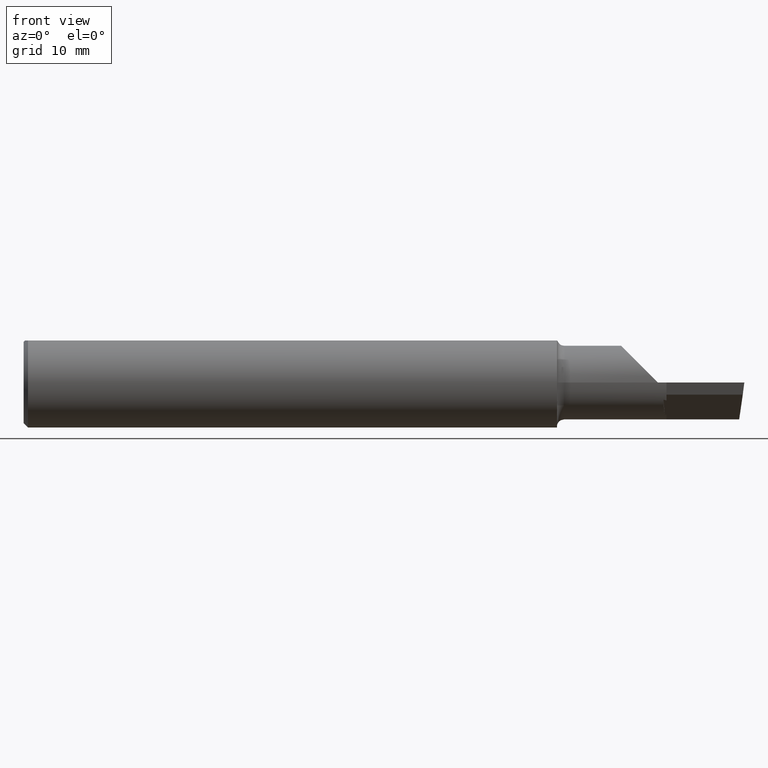
[diagram: clean part render]
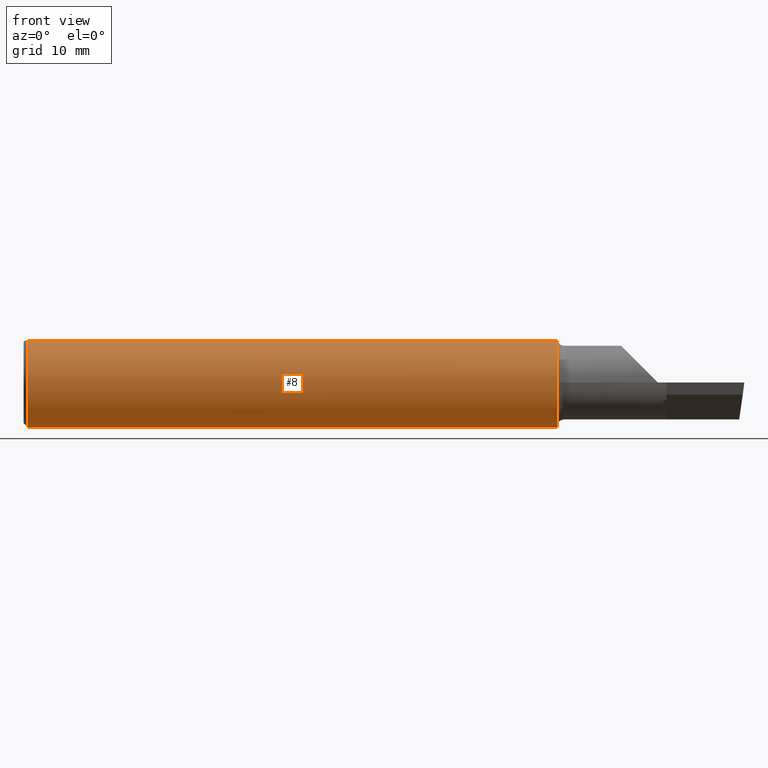
[diagram: same view with one face highlighted and labeled with its STEP entity id]
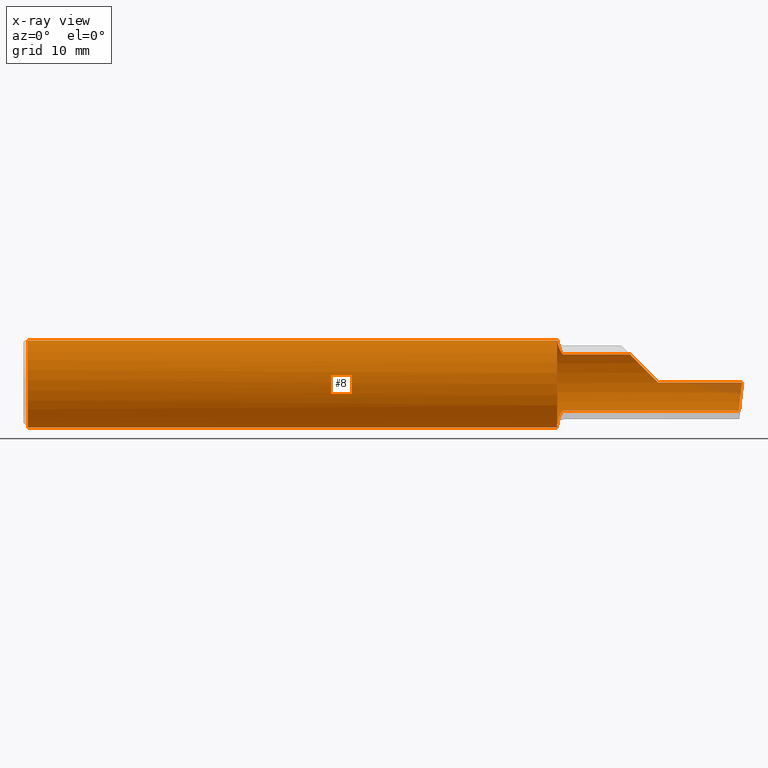
[diagram: x-ray of the same camera — body ghosted, the highlighted face saturated]
A machine part, front view. The second image highlights one B-rep face of the part: STEP entity #8.
The next image is the same camera in x-ray: the body ghosted, the highlighted face saturated — about 1% of this face is hidden behind the body in this view.
In plain terms, the highlighted cylindrical surface (partial cylindrical patch) has radius 3.9649 mm, axis along (-1, -0, -0).
Its self-contained STEP definition (entity closure, byte-faithful):
#3 =( BOUNDED_CURVE ( )  B_SPLINE_CURVE ( 3, ( #381, #215, #436, #553 ),
 .UNSPECIFIED., .F., .F. ) 
 B_SPLINE_CURVE_WITH_KNOTS ( ( 4, 4 ),
 ( 4.934903206476692006, 5.606733633295030828 ),
 .UNSPECIFIED. ) 
 CURVE ( )  GEOMETRIC_REPRESENTATION_ITEM ( )  RATIONAL_B_SPLINE_CURVE ( ( 1.000000000000000000, 0.9627393467969929119, 0.9627393467969929119, 1.000000000000000000 ) ) 
 REPRESENTATION_ITEM ( '' )  );
#5 = AXIS2_PLACEMENT_3D ( 'NONE', #282, #386, #232 ) ;
#8 = ADVANCED_FACE ( 'NONE', ( #389 ), #663, .T. ) ;
#11 = ORIENTED_EDGE ( 'NONE', *, *, #677, .T. ) ;
#18 = ORIENTED_EDGE ( 'NONE', *, *, #31, .T. ) ;
#22 = CARTESIAN_POINT ( 'NONE',  ( 0.01499999999999999424, 0.05497272050753903433, 0.1460999999999999521 ) ) ;
#25 = EDGE_CURVE ( 'NONE', #449, #508, #447, .T. ) ;
#30 = CARTESIAN_POINT ( 'NONE',  ( 1.850339637342208743, 0.05067448177557441757, -0.1479473295851734538 ) ) ;
#31 = EDGE_CURVE ( 'NONE', #600, #618, #154, .T. ) ;
#36 = DIRECTION ( 'NONE',  ( 0.000000000000000000, 0.000000000000000000, 1.000000000000000000 ) ) ;
#38 = CARTESIAN_POINT ( 'NONE',  ( 2.200000000000000178, 0.1560999999999997667, 9.797174393178826150E-17 ) ) ;
#64 = CARTESIAN_POINT ( 'NONE',  ( 1.871394201221187714, 0.1214391589398817889, 0.09808983170724469569 ) ) ;
#68 = CARTESIAN_POINT ( 'NONE',  ( 2.200000000000000178, 0.1560999999999997667, 9.797174393178826150E-17 ) ) ;
#74 = VERTEX_POINT ( 'NONE', #22 ) ;
#76 = CARTESIAN_POINT ( 'NONE',  ( 1.850000000000000311, 0.03217692307692287396, -0.1527476861405820951 ) ) ;
#77 = ORIENTED_EDGE ( 'NONE', *, *, #191, .T. ) ;
#80 = CARTESIAN_POINT ( 'NONE',  ( 1.857643545987175182, 0.09968740490940185273, -0.1204690658458922592 ) ) ;
#81 = LINE ( 'NONE', #299, #274 ) ;
#84 = CARTESIAN_POINT ( 'NONE',  ( 0.000000000000000000, 0.05497272050753903433, 0.1460999999999999521 ) ) ;
#100 = VERTEX_POINT ( 'NONE', #554 ) ;
#101 = LINE ( 'NONE', #418, #305 ) ;
#104 = EDGE_CURVE ( 'NONE', #489, #449, #407, .T. ) ;
#107 = CARTESIAN_POINT ( 'NONE',  ( 3.121792066109142165E-32, 0.1560999999999999333, 3.155924005931204823E-16 ) ) ;
#110 = EDGE_CURVE ( 'NONE', #644, #376, #81, .T. ) ;
#118 = CARTESIAN_POINT ( 'NONE',  ( 1.859698108077551426, 0.1054404049151040079, 0.1153284228895402330 ) ) ;
#120 = LINE ( 'NONE', #453, #227 ) ;
#122 = CARTESIAN_POINT ( 'NONE',  ( 2.164368501139629419, 0.1560999999999999888, 0.03563149886037008524 ) ) ;
#126 = CARTESIAN_POINT ( 'NONE',  ( 1.861718925422503945, 0.1096997042182705773, -0.1111484413982588015 ) ) ;
#130 = CARTESIAN_POINT ( 'NONE',  ( 2.481689713451043833, 0.1221769230769230025, -0.09715971113303926987 ) ) ;
#132 = B_SPLINE_CURVE_WITH_KNOTS ( 'NONE', 3,
 ( #581, #411, #511, #624, #246, #139, #135, #345, #126, #80, #468, #567, #521, #30, #239, #76 ),
 .UNSPECIFIED., .F., .F.,
 ( 4, 2, 2, 2, 2, 2, 2, 4 ),
 ( 1.968192473106879856E-07, 9.217006773806666828E-05, 0.0001841433162288226436, 0.0003680898132103224240, 0.0007359828071733212802, 0.001471768795099325606, 0.002207554783025329932, 0.002943340770951334041 ),
 .UNSPECIFIED. ) ;
#134 = CARTESIAN_POINT ( 'NONE',  ( 1.850713348720346207, 0.05497272050753925637, 0.1460999999999999521 ) ) ;
#135 = CARTESIAN_POINT ( 'NONE',  ( 1.866392177358948024, 0.1172252637552309573, -0.1031022108064128945 ) ) ;
#137 = DIRECTION ( 'NONE',  ( 0.000000000000000000, 0.000000000000000000, 1.000000000000000000 ) ) ;
#139 = CARTESIAN_POINT ( 'NONE',  ( 1.867557852537987007, 0.1186103045499230513, -0.1015006042428822641 ) ) ;
#143 = EDGE_CURVE ( 'NONE', #376, #174, #132, .T. ) ;
#154 = B_SPLINE_CURVE_WITH_KNOTS ( 'NONE', 3,
 ( #170, #223, #608, #327, #118, #277, #557, #666, #173, #64, #226, #671 ),
 .UNSPECIFIED., .F., .F.,
 ( 4, 2, 2, 2, 2, 4 ),
 ( 5.609278044437242005E-07, 0.001139286486424871073, 0.001708649265735085430, 0.001993330655390192392, 0.002135671350217746307, 0.002278012045045300655 ),
 .UNSPECIFIED. ) ;
#167 = EDGE_CURVE ( 'NONE', #74, #640, #515, .T. ) ;
#170 = CARTESIAN_POINT ( 'NONE',  ( 1.850713348720346207, 0.05497272050753925637, 0.1460999999999999521 ) ) ;
#173 = CARTESIAN_POINT ( 'NONE',  ( 1.868763041475363096, 0.1196999967355481670, 0.1002047663032614166 ) ) ;
#174 = VERTEX_POINT ( 'NONE', #304 ) ;
#185 = CARTESIAN_POINT ( 'NONE',  ( 0.01499999999999999424, 0.000000000000000000, 0.000000000000000000 ) ) ;
#191 = EDGE_CURVE ( 'NONE', #74, #600, #454, .T. ) ;
#195 = DIRECTION ( 'NONE',  ( 1.000000000000000000, -6.829619984160658046E-18, 0.000000000000000000 ) ) ;
#204 = EDGE_LOOP ( 'NONE', ( #325, #512, #469, #275, #295, #11, #444, #539, #77, #18, #541, #481 ) ) ;
#215 = CARTESIAN_POINT ( 'NONE',  ( 2.488065891762460069, 0.1561000000000000443, -0.03563149886036989789 ) ) ;
#223 = CARTESIAN_POINT ( 'NONE',  ( 1.851630938536527937, 0.06913608029031592661, 0.1407707842656651387 ) ) ;
#226 = CARTESIAN_POINT ( 'NONE',  ( 1.873073469876037622, 0.1221769230783499999, 0.09715971113124509395 ) ) ;
#227 = VECTOR ( 'NONE', #566, 39.37007874015748143 ) ;
#230 = DIRECTION ( 'NONE',  ( -1.000000000000000000, -0.000000000000000000, -0.000000000000000000 ) ) ;
#232 = DIRECTION ( 'NONE',  ( 0.000000000000000000, 0.000000000000000000, 1.000000000000000000 ) ) ;
#238 = EDGE_CURVE ( 'NONE', #618, #489, #101, .T. ) ;
#239 = CARTESIAN_POINT ( 'NONE',  ( 1.850000000000000755, 0.04153761541478970254, -0.1507758181214157445 ) ) ;
#246 = CARTESIAN_POINT ( 'NONE',  ( 1.869807963827558206, 0.1204260765459406329, -0.09932603807424252029 ) ) ;
#248 = DIRECTION ( 'NONE',  ( -1.000000000000000000, 6.829619984160658046E-18, -0.000000000000000000 ) ) ;
#265 = CARTESIAN_POINT ( 'NONE',  ( 1.875000000000000000, 0.1221769230769220033, -0.09715971113304010254 ) ) ;
#274 = VECTOR ( 'NONE', #248, 39.37007874015748143 ) ;
#275 = ORIENTED_EDGE ( 'NONE', *, *, #143, .T. ) ;
#277 = CARTESIAN_POINT ( 'NONE',  ( 1.863476732597052488, 0.1130158469709901942, 0.1077376761497236685 ) ) ;
#282 = CARTESIAN_POINT ( 'NONE',  ( 0.000000000000000000, 0.000000000000000000, 0.000000000000000000 ) ) ;
#290 = CIRCLE ( 'NONE', #448, 0.1560999999999999888 ) ;
#294 = CARTESIAN_POINT ( 'NONE',  ( 2.130728481662468532, 0.1443546689866652133, 0.06927151833753075749 ) ) ;
#295 = ORIENTED_EDGE ( 'NONE', *, *, #412, .T. ) ;
#299 = CARTESIAN_POINT ( 'NONE',  ( 2.052500000000000213, 0.1221769230769230025, -0.09715971113303926987 ) ) ;
#304 = CARTESIAN_POINT ( 'NONE',  ( 1.850000000000000311, 0.03217692307692287396, -0.1527476861405820951 ) ) ;
#305 = VECTOR ( 'NONE', #195, 39.37007874015748143 ) ;
#312 = VECTOR ( 'NONE', #678, 39.37007874015748143 ) ;
#316 = VERTEX_POINT ( 'NONE', #583 ) ;
#325 = ORIENTED_EDGE ( 'NONE', *, *, #25, .T. ) ;
#327 = CARTESIAN_POINT ( 'NONE',  ( 1.857875668882802200, 0.09985555054163942901, 0.1202116869044330127 ) ) ;
#338 = DIRECTION ( 'NONE',  ( 1.000000000000000000, 0.000000000000000000, 0.000000000000000000 ) ) ;
#341 = DIRECTION ( 'NONE',  ( 0.000000000000000000, -1.000000000000000000, 0.000000000000000000 ) ) ;
#345 = CARTESIAN_POINT ( 'NONE',  ( 1.863285512035948166, 0.1129012003027984878, -0.1078842078934690862 ) ) ;
#359 = CARTESIAN_POINT ( 'NONE',  ( 2.102840288866959728, 0.1221769230769229192, 0.09715971113303935314 ) ) ;
#376 = VERTEX_POINT ( 'NONE', #265 ) ;
#381 = CARTESIAN_POINT ( 'NONE',  ( 2.492284669827090404, 0.1560999999999998500, 6.904452464043948710E-17 ) ) ;
#385 = CARTESIAN_POINT ( 'NONE',  ( 1.850000000000000311, 0.000000000000000000, 0.000000000000000000 ) ) ;
#386 = DIRECTION ( 'NONE',  ( -1.000000000000000000, -0.000000000000000000, -0.000000000000000000 ) ) ;
#389 = FACE_OUTER_BOUND ( 'NONE', #204, .T. ) ;
#397 = CARTESIAN_POINT ( 'NONE',  ( 0.01499999999999999424, 0.000000000000000000, 0.000000000000000000 ) ) ;
#407 =( BOUNDED_CURVE ( )  B_SPLINE_CURVE ( 3, ( #359, #294, #122, #38 ),
 .UNSPECIFIED., .F., .T. ) 
 B_SPLINE_CURVE_WITH_KNOTS ( ( 4, 4 ),
 ( 0.8989658999765582914, 1.570796326794896336 ),
 .UNSPECIFIED. ) 
 CURVE ( )  GEOMETRIC_REPRESENTATION_ITEM ( )  RATIONAL_B_SPLINE_CURVE ( ( 1.000000000000000000, 0.9627393467969930230, 0.9627393467969930230, 1.000000000000000000 ) ) 
 REPRESENTATION_ITEM ( '' )  );
#411 = CARTESIAN_POINT ( 'NONE',  ( 1.873773678789315333, 0.1221769230769221837, -0.09715971113304026907 ) ) ;
#412 = EDGE_CURVE ( 'NONE', #174, #100, #645, .T. ) ;
#415 = AXIS2_PLACEMENT_3D ( 'NONE', #385, #495, #341 ) ;
#418 = CARTESIAN_POINT ( 'NONE',  ( 2.052500000000000213, 0.1221769230769230025, 0.09715971113303926987 ) ) ;
#436 = CARTESIAN_POINT ( 'NONE',  ( 2.484397555013683423, 0.1443546689866653243, -0.06927151833753060484 ) ) ;
#444 = ORIENTED_EDGE ( 'NONE', *, *, #625, .F. ) ;
#447 = LINE ( 'NONE', #107, #586 ) ;
#448 = AXIS2_PLACEMENT_3D ( 'NONE', #397, #230, #137 ) ;
#449 = VERTEX_POINT ( 'NONE', #68 ) ;
#453 = CARTESIAN_POINT ( 'NONE',  ( 0.000000000000000000, -0.05497272050753897882, 0.1461000000000000076 ) ) ;
#454 = LINE ( 'NONE', #84, #312 ) ;
#468 = CARTESIAN_POINT ( 'NONE',  ( 1.855770389155364963, 0.09238103948165123092, -0.1261792856732155410 ) ) ;
#469 = ORIENTED_EDGE ( 'NONE', *, *, #110, .T. ) ;
#481 = ORIENTED_EDGE ( 'NONE', *, *, #104, .T. ) ;
#487 = CARTESIAN_POINT ( 'NONE',  ( 2.102840288866959728, 0.1221769230769229192, 0.09715971113303935314 ) ) ;
#489 = VERTEX_POINT ( 'NONE', #487 ) ;
#495 = DIRECTION ( 'NONE',  ( -1.000000000000000000, 6.829619984160658046E-18, -0.000000000000000000 ) ) ;
#505 = CARTESIAN_POINT ( 'NONE',  ( 0.01499999999999999424, 0.000000000000000000, -0.1560999999999999888 ) ) ;
#508 = VERTEX_POINT ( 'NONE', #604 ) ;
#511 = CARTESIAN_POINT ( 'NONE',  ( 1.872618110610526632, 0.1218695340585141257, -0.09754752781703028564 ) ) ;
#512 = ORIENTED_EDGE ( 'NONE', *, *, #534, .T. ) ;
#515 = CIRCLE ( 'NONE', #528, 0.1560999999999999888 ) ;
#521 = CARTESIAN_POINT ( 'NONE',  ( 1.851725101710129051, 0.06813315891665761015, -0.1407628789512506418 ) ) ;
#528 = AXIS2_PLACEMENT_3D ( 'NONE', #185, #629, #36 ) ;
#534 = EDGE_CURVE ( 'NONE', #508, #644, #3, .T. ) ;
#539 = ORIENTED_EDGE ( 'NONE', *, *, #167, .F. ) ;
#541 = ORIENTED_EDGE ( 'NONE', *, *, #238, .T. ) ;
#553 = CARTESIAN_POINT ( 'NONE',  ( 2.481689713451043833, 0.1221769230769230025, -0.09715971113303926987 ) ) ;
#554 = CARTESIAN_POINT ( 'NONE',  ( 1.850000000000000311, -0.05497272050753900657, 0.1461000000000000076 ) ) ;
#557 = CARTESIAN_POINT ( 'NONE',  ( 1.864904289182652164, 0.1154277421181112012, 0.1051401666291007786 ) ) ;
#566 = DIRECTION ( 'NONE',  ( -1.000000000000000000, -0.000000000000000000, -0.000000000000000000 ) ) ;
#567 = CARTESIAN_POINT ( 'NONE',  ( 1.852778396491915336, 0.07658129683222555939, -0.1363479870192732257 ) ) ;
#580 = CARTESIAN_POINT ( 'NONE',  ( 1.875000000000000000, 0.1221769230769221282, 0.09715971113304001927 ) ) ;
#581 = CARTESIAN_POINT ( 'NONE',  ( 1.875000000000000000, 0.1221769230769220033, -0.09715971113304010254 ) ) ;
#583 = CARTESIAN_POINT ( 'NONE',  ( 0.01499999999999999944, -0.05497272050753897882, 0.1461000000000000076 ) ) ;
#586 = VECTOR ( 'NONE', #338, 39.37007874015748143 ) ;
#600 = VERTEX_POINT ( 'NONE', #134 ) ;
#604 = CARTESIAN_POINT ( 'NONE',  ( 2.492284669827090404, 0.1560999999999998500, 6.904452464043948710E-17 ) ) ;
#608 = CARTESIAN_POINT ( 'NONE',  ( 1.853337430773764893, 0.08212431379002402276, 0.1335735365034966815 ) ) ;
#618 = VERTEX_POINT ( 'NONE', #580 ) ;
#624 = CARTESIAN_POINT ( 'NONE',  ( 1.870642477297820294, 0.1209866175416247219, -0.09864046781463609026 ) ) ;
#625 = EDGE_CURVE ( 'NONE', #640, #316, #290, .T. ) ;
#629 = DIRECTION ( 'NONE',  ( -1.000000000000000000, -0.000000000000000000, -0.000000000000000000 ) ) ;
#640 = VERTEX_POINT ( 'NONE', #505 ) ;
#644 = VERTEX_POINT ( 'NONE', #130 ) ;
#645 = CIRCLE ( 'NONE', #415, 0.1560999999999999888 ) ;
#663 = CYLINDRICAL_SURFACE ( 'NONE', #5, 0.1560999999999999888 ) ;
#666 = CARTESIAN_POINT ( 'NONE',  ( 1.867713039397280061, 0.1186710145423632706, 0.1014253537327270416 ) ) ;
#671 = CARTESIAN_POINT ( 'NONE',  ( 1.875000000000000000, 0.1221769230769221282, 0.09715971113304001927 ) ) ;
#677 = EDGE_CURVE ( 'NONE', #100, #316, #120, .T. ) ;
#678 = DIRECTION ( 'NONE',  ( 1.000000000000000000, 0.000000000000000000, 0.000000000000000000 ) ) ;